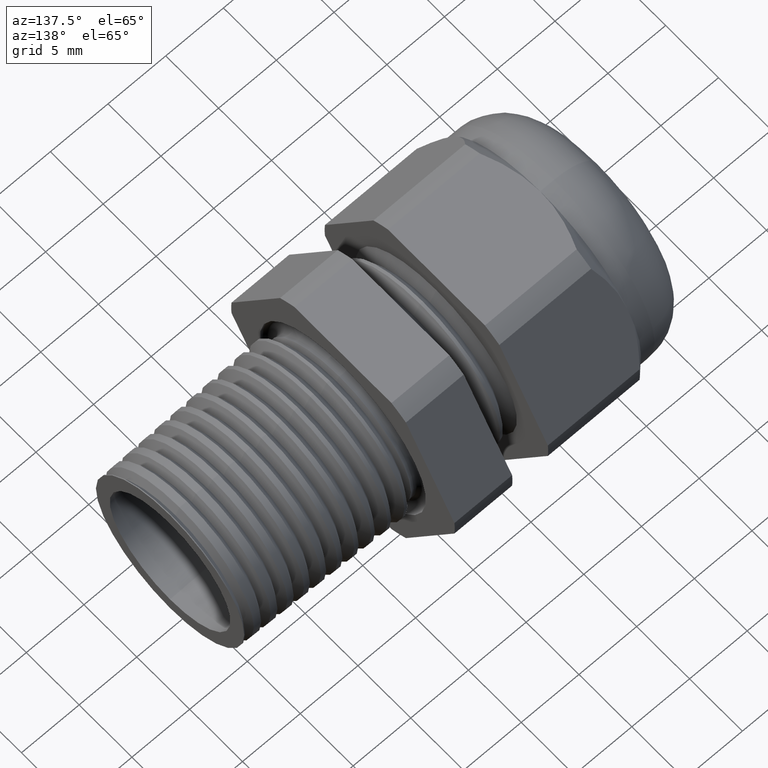
[diagram: clean part render]
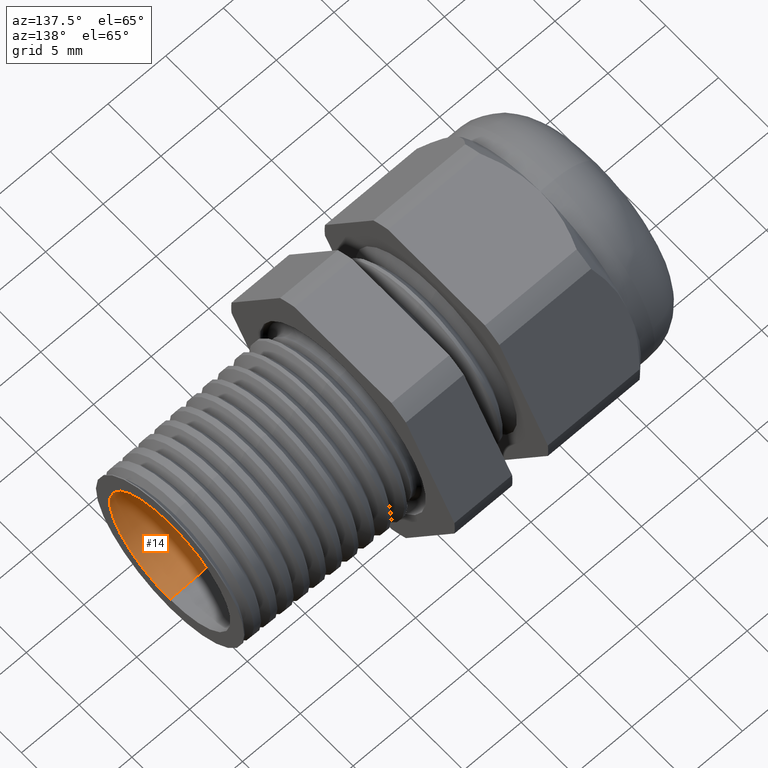
[diagram: same view with one face highlighted and labeled with its STEP entity id]
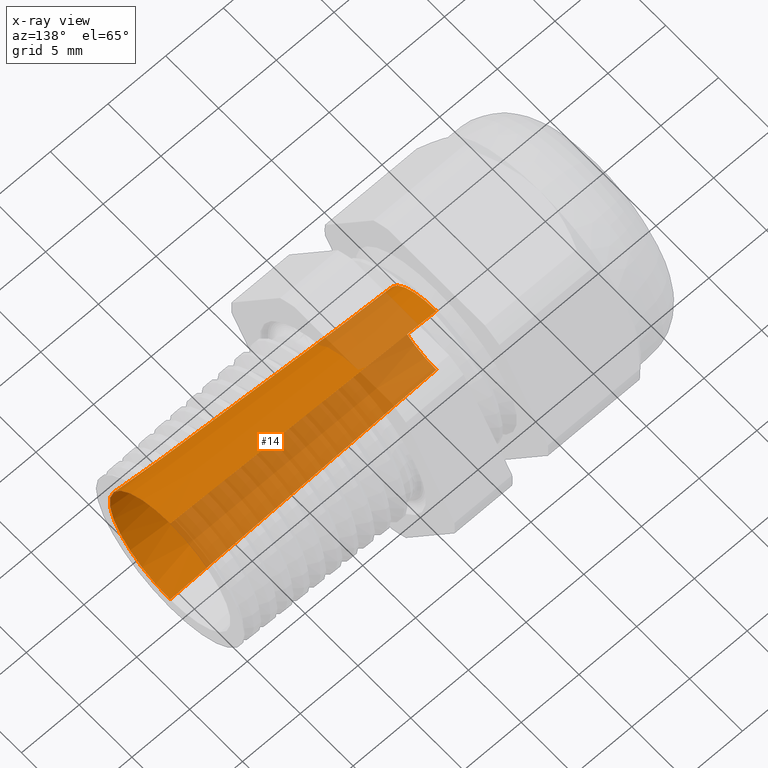
[diagram: x-ray of the same camera — body ghosted, the highlighted face saturated]
A machine part, auxiliary view. The second image highlights one B-rep face of the part: STEP entity #14.
The next image is the same camera in x-ray: the body ghosted, the highlighted face saturated — about 50% of this face is hidden behind the body in this view.
In plain terms, the highlighted conical surface has half-angle 3.149 deg.
Its self-contained STEP definition (entity closure, byte-faithful):
#9 = EDGE_LOOP ( 'NONE', ( #20, #21, #267, #263 ) ) ;
#14 = ADVANCED_FACE ( 'NONE', ( #1350 ), #1348, .F. ) ;
#17 = VERTEX_POINT ( 'NONE', #1340 ) ;
#18 = VERTEX_POINT ( 'NONE', #1339 ) ;
#20 = ORIENTED_EDGE ( 'NONE', *, *, #24, .F. ) ;
#21 = ORIENTED_EDGE ( 'NONE', *, *, #265, .T. ) ;
#24 = EDGE_CURVE ( 'NONE', #17, #18, #1329, .T. ) ;
#263 = ORIENTED_EDGE ( 'NONE', *, *, #264, .F. ) ;
#264 = EDGE_CURVE ( 'NONE', #18, #269, #1811, .T. ) ;
#265 = EDGE_CURVE ( 'NONE', #17, #266, #1807, .T. ) ;
#266 = VERTEX_POINT ( 'NONE', #1803 ) ;
#267 = ORIENTED_EDGE ( 'NONE', *, *, #268, .T. ) ;
#268 = EDGE_CURVE ( 'NONE', #266, #269, #1866, .T. ) ;
#269 = VERTEX_POINT ( 'NONE', #1861 ) ;
#1327 = CARTESIAN_POINT ( 'NONE',  ( -0.6288188976377949700, 0.0000000000000000000, 0.0000000000000000000 ) ) ;
#1328 = AXIS2_PLACEMENT_3D ( 'NONE', #1327, #1389, #1388 ) ;
#1329 = CIRCLE ( 'NONE', #1328, 0.1749999999999999900 ) ;
#1339 = CARTESIAN_POINT ( 'NONE',  ( -0.6288188976377949700, 0.0000000000000000000, -0.1749999999999999900 ) ) ;
#1340 = CARTESIAN_POINT ( 'NONE',  ( -0.6288188976377949700, 2.143131898507868000E-017, 0.1749999999999999900 ) ) ;
#1344 = DIRECTION ( 'NONE',  ( 0.0000000000000000000, 0.0000000000000000000, -1.000000000000000000 ) ) ;
#1345 = DIRECTION ( 'NONE',  ( 1.000000000000000000, 0.0000000000000000000, 0.0000000000000000000 ) ) ;
#1346 = CARTESIAN_POINT ( 'NONE',  ( -0.6288188976377949700, 0.0000000000000000000, 0.0000000000000000000 ) ) ;
#1347 = AXIS2_PLACEMENT_3D ( 'NONE', #1346, #1345, #1344 ) ;
#1348 = CONICAL_SURFACE ( 'NONE', #1347, 0.1749999999999999900, 0.05496105406396650800 ) ;
#1350 = FACE_OUTER_BOUND ( 'NONE', #9, .T. ) ;
#1388 = DIRECTION ( 'NONE',  ( 0.0000000000000000000, 0.0000000000000000000, -1.000000000000000000 ) ) ;
#1389 = DIRECTION ( 'NONE',  ( 1.000000000000000000, 0.0000000000000000000, 0.0000000000000000000 ) ) ;
#1803 = CARTESIAN_POINT ( 'NONE',  ( 0.2799999999999997500, 2.755455298081543900E-017, 0.2249999999999999200 ) ) ;
#1804 = DIRECTION ( 'NONE',  ( 0.9984900214270584500, 6.727399770732748200E-018, 0.05493338794023407800 ) ) ;
#1805 = VECTOR ( 'NONE', #1804, 39.37007874015748100 ) ;
#1806 = CARTESIAN_POINT ( 'NONE',  ( -0.6288188976377949700, 2.143131898507868000E-017, 0.1749999999999999900 ) ) ;
#1807 = LINE ( 'NONE', #1806, #1805 ) ;
#1808 = DIRECTION ( 'NONE',  ( 0.9984900214270584500, 0.0000000000000000000, -0.05493338794023407800 ) ) ;
#1809 = VECTOR ( 'NONE', #1808, 39.37007874015748100 ) ;
#1810 = CARTESIAN_POINT ( 'NONE',  ( -0.6288188976377949700, 0.0000000000000000000, -0.1749999999999999900 ) ) ;
#1811 = LINE ( 'NONE', #1810, #1809 ) ;
#1861 = CARTESIAN_POINT ( 'NONE',  ( 0.2799999999999997500, 0.0000000000000000000, -0.2249999999999999200 ) ) ;
#1862 = DIRECTION ( 'NONE',  ( 0.0000000000000000000, 0.0000000000000000000, -1.000000000000000000 ) ) ;
#1863 = DIRECTION ( 'NONE',  ( 1.000000000000000000, 0.0000000000000000000, 0.0000000000000000000 ) ) ;
#1864 = CARTESIAN_POINT ( 'NONE',  ( 0.2799999999999997500, 0.0000000000000000000, 0.0000000000000000000 ) ) ;
#1865 = AXIS2_PLACEMENT_3D ( 'NONE', #1864, #1863, #1862 ) ;
#1866 = CIRCLE ( 'NONE', #1865, 0.2249999999999999200 ) ;